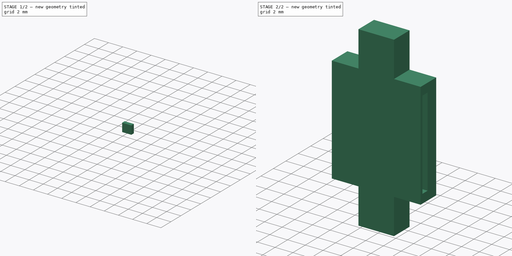
[diagram: build sequence overview — one tinted view per stage of 2, left to right]
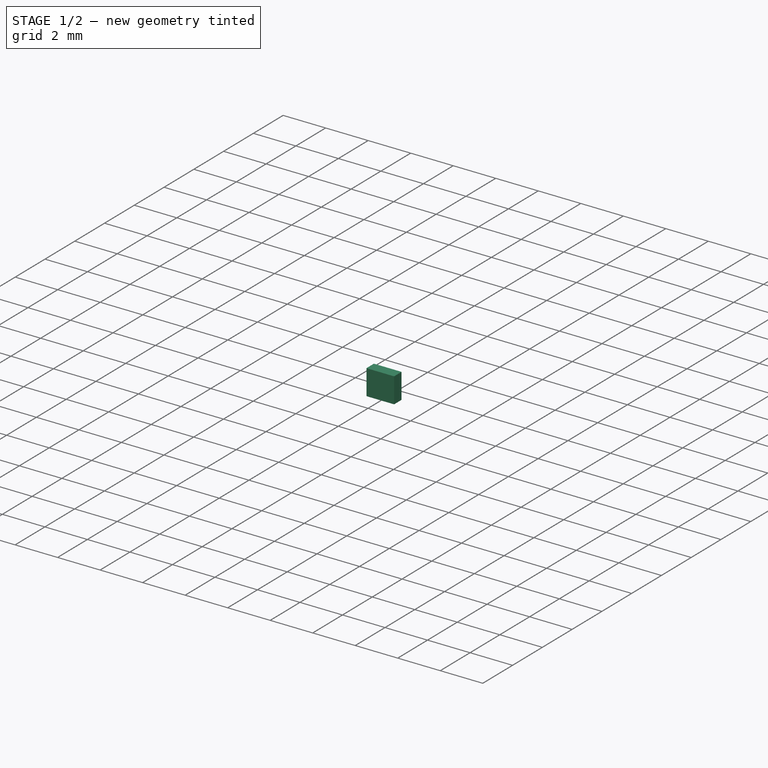
[diagram: stage 1 of 2 — iso view after this stage's code; geometry added in this stage tinted green]
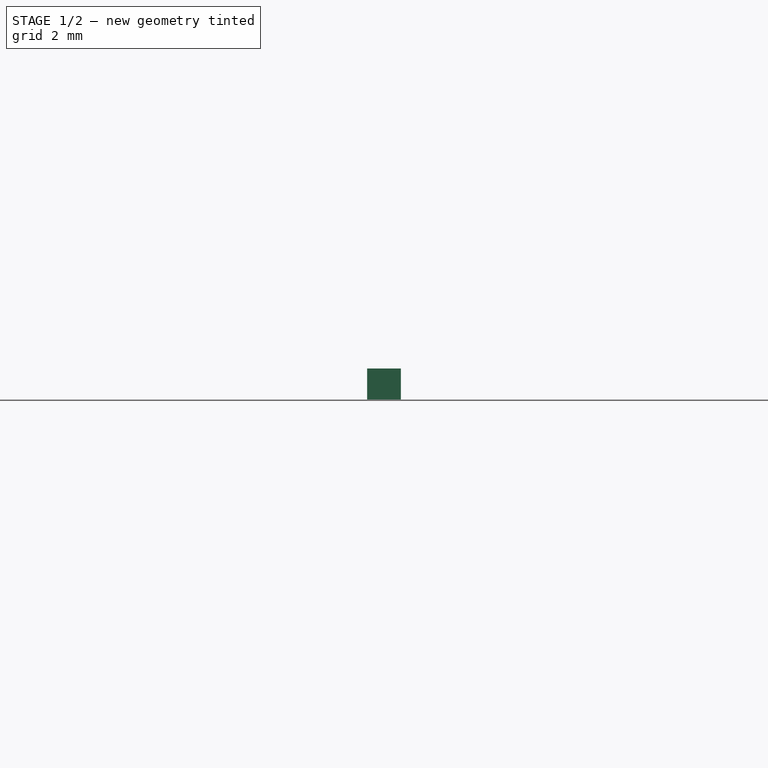
[diagram: stage 1 of 2 — front view after this stage's code; geometry added in this stage tinted green]
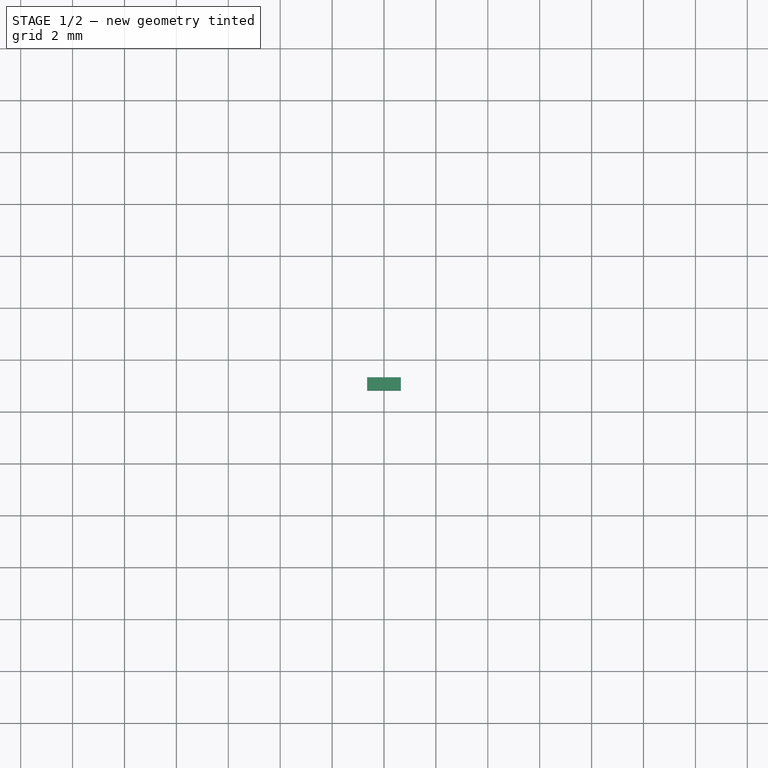
[diagram: stage 1 of 2 — top view after this stage's code; geometry added in this stage tinted green]
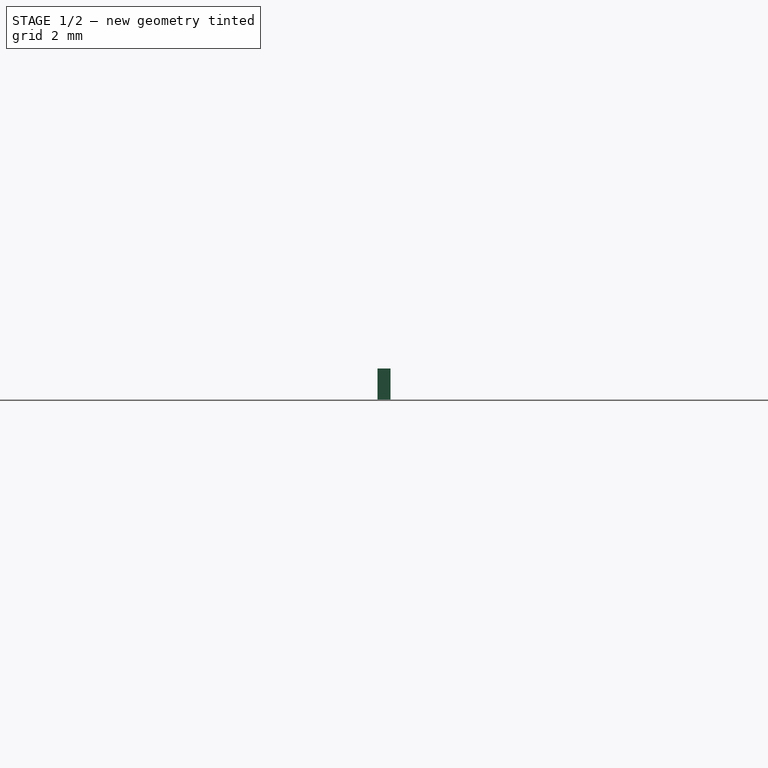
[diagram: stage 1 of 2 — right view after this stage's code; geometry added in this stage tinted green]
FCSTD DOCUMENT  (FreeCAD 0.21R39043 (Git))
Label: monoliticOnLTCC
License: All rights reserved
LicenseURL: https://en.wikipedia.org/wiki/All_rights_reserved
objects: Part::Feature×53, PartDesign::SubShapeBinder×15, App::Part×14, Part::SubShapeBinder×11, PartDesign::Body×8, Sketcher::SketchObject×2, PartDesign::Pad×1, PartDesign::Boolean×1, PartDesign::Extrusion×1
note: 99 computed .brp shape members not serialized (recipe doc carries the construction recipe); baked Part::Feature solids carry a one-line shape summary decoded from their .brp

FEATURE [Part::Feature] Solid  label="solid19"
  InvalidShape = false
  TreeRank = 54
  ValidateShape = false
  shape: bbox 0.45 x 0.3 x 0.45 mm, 4 faces (baked)
FEATURE [Part::Feature] Solid001  label="solid19_1"
  InvalidShape = false
  TreeRank = 55
  ValidateShape = false
  shape: bbox 0.45 x 0.3 x 0.45 mm, 4 faces (baked)
FEATURE [App::Part] Part  label="BC_Contatto_Esterno"
  ClaimAllChildren = false
  ExportMode = 1
  Group = -> [Solid,Solid001]
  Origin = -> Origin
  TreeRank = 57
  _ExportChildren = -> [Solid,Solid001]
  _GroupVersion = 1
FEATURE [Part::Feature] Shell  label="face1"
  InvalidShape = false
  TreeRank = 58
  ValidateShape = false
  shape: bbox 1.5 x 2e-07 x 6.8 mm, 1 faces, 0 solids (baked)
FEATURE [Part::Feature] Shell001  label="face2"
  InvalidShape = false
  TreeRank = 59
  ValidateShape = false
  shape: bbox 0.3 x 2e-07 x 0.65 mm, 1 faces, 0 solids (baked)
FEATURE [Part::Feature] Shell002  label="face3"
  InvalidShape = false
  TreeRank = 60
  ValidateShape = false
  shape: bbox 2 x 2e-07 x 2 mm, 1 faces, 0 solids (baked)
FEATURE [Part::Feature] Shell003  label="face5"
  InvalidShape = false
  TreeRank = 61
  ValidateShape = false
  shape: bbox 1.5 x 2e-07 x 2.8 mm, 1 faces, 0 solids (baked)
FEATURE [Part::Feature] Shell004  label="face6"
  InvalidShape = false
  TreeRank = 62
  ValidateShape = false
  shape: bbox 0.2 x 2e-07 x 1.2 mm, 1 faces, 0 solids (baked)
FEATURE [Part::Feature] Shell005  label="face7"
  InvalidShape = false
  TreeRank = 63
  ValidateShape = false
  shape: bbox 0.3 x 2e-07 x 0.65 mm, 1 faces, 0 solids (baked)
FEATURE [Part::Feature] Shell006  label="face8"
  InvalidShape = false
  TreeRank = 64
  ValidateShape = false
  shape: bbox 1.5 x 2e-07 x 2.8 mm, 1 faces, 0 solids (baked)
FEATURE [Part::Feature] Shell007  label="face9"
  InvalidShape = false
  TreeRank = 65
  ValidateShape = false
  shape: bbox 0.2 x 2e-07 x 1.2 mm, 1 faces, 0 solids (baked)
FEATURE [Part::Feature] Shell008  label="face10"
  InvalidShape = false
  TreeRank = 66
  ValidateShape = false
  shape: bbox 0.9 x 2e-07 x 0.2 mm, 1 faces, 0 solids (baked)
FEATURE [Part::Feature] Shell009  label="face11"
  InvalidShape = false
  TreeRank = 67
  ValidateShape = false
  shape: bbox 0.9 x 2e-07 x 0.2 mm, 1 faces, 0 solids (baked)
FEATURE [Part::Feature] Shell010  label="face12"
  InvalidShape = false
  TreeRank = 68
  ValidateShape = false
  shape: bbox 0.9 x 2e-07 x 0.2 mm, 1 faces, 0 solids (baked)
FEATURE [Part::Feature] Shell011  label="face13"
  InvalidShape = false
  TreeRank = 69
  ValidateShape = false
  shape: bbox 0.9 x 2e-07 x 0.2 mm, 1 faces, 0 solids (baked)
FEATURE [App::Part] Part001  label="BC_Metal_planar"
  ClaimAllChildren = false
  ExportMode = 1
  Group = -> [Shell,Shell001,Shell002,Shell003,Shell004,Shell005,Shell006,Shell007,Shell008,Shell009,Shell010,Shell011]
  Origin = -> Origin001
  TreeRank = 71
  _ExportChildren = -> [Shell,Shell001,Shell002,Shell003,Shell004,Shell005,Shell006,Shell007,Shell008,Shell009,Shell010,Shell011]
  _GroupVersion = 1
FEATURE [Part::Feature] Solid002  label="solid13"
  InvalidShape = false
  TreeRank = 72
  ValidateShape = false
  shape: bbox 0.13 x 0.411 x 0.13 mm, 4 faces (baked)
FEATURE [Part::Feature] Solid003  label="solid16"
  InvalidShape = false
  TreeRank = 73
  ValidateShape = false
  shape: bbox 0.13 x 0.411 x 0.13 mm, 4 faces (baked)
FEATURE [Part::Feature] Solid004  label="solid32"
  InvalidShape = false
  TreeRank = 74
  ValidateShape = false
  shape: bbox 0.45 x 0.3 x 0.45 mm, 4 faces (baked)
FEATURE [Part::Feature] Solid005  label="solid34"
  InvalidShape = false
  TreeRank = 75
  ValidateShape = false
  shape: bbox 0.3 x 0.125 x 0.3 mm, 4 faces (baked)
FEATURE [App::Part] Part002  label="BC_Metallizzazioni"
  ClaimAllChildren = false
  ExportMode = 1
  Group = -> [Solid002,Solid003,Solid004,Solid005]
  Origin = -> Origin002
  TreeRank = 77
  _ExportChildren = -> [Solid002,Solid003,Solid004,Solid005]
  _GroupVersion = 1
FEATURE [Part::Feature] Solid006  label="solid035"
  InvalidShape = false
  TreeRank = 78
  ValidateShape = false
  shape: bbox 0.13 x 0.411 x 0.13 mm, 4 faces (baked)
FEATURE [Part::Feature] Solid007  label="solid036"
  InvalidShape = false
  TreeRank = 79
  ValidateShape = false
  shape: bbox 0.13 x 0.411 x 0.13 mm, 4 faces (baked)
FEATURE [Part::Feature] Solid008  label="solid037"
  InvalidShape = false
  TreeRank = 80
  ValidateShape = false
  shape: bbox 0.45 x 0.3 x 0.45 mm, 4 faces (baked)
FEATURE [Part::Feature] Solid009  label="solid038"
  InvalidShape = false
  TreeRank = 81
  ValidateShape = false
  shape: bbox 0.3 x 0.125 x 0.3 mm, 4 faces (baked)
FEATURE [App::Part] Part003  label="BC_Metallizzazioni_Bis"
  ClaimAllChildren = false
  ExportMode = 1
  Group = -> [Solid006,Solid007,Solid008,Solid009]
  Origin = -> Origin003
  TreeRank = 83
  _ExportChildren = -> [Solid006,Solid007,Solid008,Solid009]
  _GroupVersion = 1
FEATURE [Part::Feature] Shell012  label="face14"
  InvalidShape = false
  TreeRank = 84
  ValidateShape = false
  shape: bbox 0.55 x 2e-07 x 7.675 mm, 1 faces, 0 solids (baked)
FEATURE [Part::Feature] Shell013  label="face15"
  InvalidShape = false
  TreeRank = 85
  ValidateShape = false
  shape: bbox 0.55 x 2e-07 x 7.675 mm, 1 faces, 0 solids (baked)
FEATURE [App::Part] Part004  label="BC_Metallizzazioni_Megtron"
  ClaimAllChildren = false
  ExportMode = 1
  Group = -> [Shell012,Shell013]
  Origin = -> Origin004
  TreeRank = 87
  _ExportChildren = -> [Shell012,Shell013]
  _GroupVersion = 1
FEATURE [Part::Feature] Shell014  label="face4"
  InvalidShape = false
  TreeRank = 88
  ValidateShape = false
  shape: bbox 0.14 x 2e-07 x 1.59 mm, 1 faces, 0 solids (baked)
FEATURE [App::Part] Part005  label="BC_Monolitico_metal"
  ClaimAllChildren = false
  ExportMode = 1
  Group = -> [Shell014]
  Origin = -> Origin005
  TreeRank = 90
  _ExportChildren = -> [Shell014]
  _GroupVersion = 1
FEATURE [Part::Feature] Solid010  label="solid23"
  InvalidShape = false
  TreeRank = 91
  ValidateShape = false
  shape: bbox 0.13 x 0.274 x 0.13 mm, 4 faces (baked)
FEATURE [Part::Feature] Solid011  label="solid24"
  InvalidShape = false
  TreeRank = 92
  ValidateShape = false
  shape: bbox 0.13 x 0.274 x 0.13 mm, 4 faces (baked)
FEATURE [Part::Feature] Solid012  label="solid25"
  InvalidShape = false
  TreeRank = 93
  ValidateShape = false
  shape: bbox 0.13 x 0.274 x 0.13 mm, 4 faces (baked)
FEATURE [Part::Feature] Compound  label="solid27"
  InvalidShape = false
  TreeRank = 94
  ValidateShape = false
  shape: bbox 0.65 x 0.274 x 0.13 mm, 8 faces, 2 solids (baked)
FEATURE [Part::Feature] Solid013  label="solid29"
  InvalidShape = false
  TreeRank = 95
  ValidateShape = false
  shape: bbox 0.13 x 0.274 x 0.13 mm, 4 faces (baked)
FEATURE [Part::Feature] Solid014  label="solid31"
  InvalidShape = false
  TreeRank = 96
  ValidateShape = false
  shape: bbox 0.13 x 0.137 x 0.13 mm, 4 faces (baked)
FEATURE [Part::Feature] Solid015  label="solid35"
  InvalidShape = false
  TreeRank = 97
  ValidateShape = false
  shape: bbox 0.13 x 0.137 x 0.13 mm, 4 faces (baked)
FEATURE [Part::Feature] Solid016  label="solid36"
  InvalidShape = false
  TreeRank = 98
  ValidateShape = false
  shape: bbox 0.13 x 0.137 x 0.13 mm, 4 faces (baked)
FEATURE [Part::Feature] Solid017  label="solid35_1"
  InvalidShape = false
  TreeRank = 99
  ValidateShape = false
  shape: bbox 0.13 x 0.137 x 0.13 mm, 4 faces (baked)
FEATURE [Part::Feature] Solid018  label="solid36_1"
  InvalidShape = false
  TreeRank = 100
  ValidateShape = false
  shape: bbox 0.13 x 0.137 x 0.13 mm, 4 faces (baked)
FEATURE [Part::Feature] Solid019  label="solid38"
  InvalidShape = false
  TreeRank = 101
  ValidateShape = false
  shape: bbox 0.13 x 0.137 x 0.13 mm, 4 faces (baked)
FEATURE [Part::Feature] Solid020  label="solid38_1"
  InvalidShape = false
  TreeRank = 102
  ValidateShape = false
  shape: bbox 0.13 x 0.137 x 0.13 mm, 4 faces (baked)
FEATURE [App::Part] Part006  label="BC_Via_Hole"
  ClaimAllChildren = false
  ExportMode = 1
  Group = -> [Solid010,Solid011,Solid012,Compound,Solid013,Solid014,Solid015,Solid016,Solid017,Solid018,Solid019,Solid020]
  Origin = -> Origin006
  TreeRank = 104
  _ExportChildren = -> [Solid010,Solid011,Solid012,Compound,Solid013,Solid014,Solid015,Solid016,Solid017,Solid018,Solid019,Solid020]
  _GroupVersion = 1
FEATURE [Part::Feature] Solid021  label="solid039"
  InvalidShape = false
  TreeRank = 105
  ValidateShape = false
  shape: bbox 0.13 x 0.274 x 0.13 mm, 4 faces (baked)
FEATURE [Part::Feature] Solid022  label="solid040"
  InvalidShape = false
  TreeRank = 106
  ValidateShape = false
  shape: bbox 0.13 x 0.274 x 0.13 mm, 4 faces (baked)
FEATURE [Part::Feature] Solid023  label="solid041"
  InvalidShape = false
  TreeRank = 137
  ValidateShape = false
  shape: bbox 0.13 x 0.274 x 0.13 mm, 4 faces (baked)
FEATURE [Part::Feature] Solid024  label="solid042"
  InvalidShape = false
  TreeRank = 138
  ValidateShape = false
  shape: bbox 0.13 x 0.274 x 0.13 mm, 4 faces (baked)
FEATURE [Part::Feature] Solid025  label="solid28"
  InvalidShape = false
  TreeRank = 139
  ValidateShape = false
  shape: bbox 0.13 x 0.274 x 0.13 mm, 4 faces (baked)
FEATURE [Part::Feature] Solid026  label="solid043"
  InvalidShape = false
  TreeRank = 140
  ValidateShape = false
  shape: bbox 0.13 x 0.274 x 0.13 mm, 4 faces (baked)
FEATURE [Part::Feature] Solid027  label="solid044"
  InvalidShape = false
  TreeRank = 141
  ValidateShape = false
  shape: bbox 0.13 x 0.137 x 0.13 mm, 4 faces (baked)
FEATURE [App::Part] Part007  label="BC_Via_Hole_Bis"
  ClaimAllChildren = false
  ExportMode = 1
  Group = -> [Solid021,Solid022,Solid023,Solid024,Solid025,Solid026,Solid027]
  Origin = -> Origin007
  TreeRank = 143
  _ExportChildren = -> [Solid021,Solid022,Solid023,Solid024,Solid025,Solid026,Solid027]
  _GroupVersion = 1
FEATURE [Part::Feature] Solid028  label="wire1"
  InvalidShape = false
  TreeRank = 144
  ValidateShape = false
  shape: bbox 0.0253 x 0.2185 x 0.45 mm, 6 faces (baked)
FEATURE [Part::Feature] Solid029  label="wire2"
  InvalidShape = false
  TreeRank = 145
  ValidateShape = false
  shape: bbox 0.0253 x 0.2185 x 0.45 mm, 6 faces (baked)
FEATURE [App::Part] Part008  label="BC_wires"
  ClaimAllChildren = false
  ExportMode = 1
  Group = -> [Solid028,Solid029]
  Origin = -> Origin008
  TreeRank = 147
  _ExportChildren = -> [Solid028,Solid029]
  _GroupVersion = 1
FEATURE [Part::Feature] Solid030  label="solid39"
  InvalidShape = false
  TreeRank = 148
  ValidateShape = false
  shape: bbox 10 x 2.5 x 20 mm, 14 faces (baked)
FEATURE [App::Part] Part009  label="AIR"
  ClaimAllChildren = false
  ExportMode = 1
  Group = -> [Solid030]
  Origin = -> Origin009
  TreeRank = 150
  _ExportChildren = -> [Solid030]
  _GroupVersion = 1
FEATURE [Part::Feature] Solid031  label="solid8"
  InvalidShape = false
  TreeRank = 151
  ValidateShape = false
  shape: bbox 10 x 0.125 x 20 mm, 14 faces (baked)
FEATURE [App::Part] Part010  label="DIEL_Megtron6"
  ClaimAllChildren = false
  ExportMode = 1
  Group = -> [Solid031]
  Origin = -> Origin010
  TreeRank = 153
  _ExportChildren = -> [Solid031]
  _GroupVersion = 1
FEATURE [Part::Feature] Solid032  label="solid5"
  InvalidShape = false
  TreeRank = 154
  ValidateShape = false
  shape: bbox 1.7 x 0.1 x 1.7 mm, 6 faces (baked)
FEATURE [App::Part] Part011  label="DIEL_Monolitico_subs"
  ClaimAllChildren = false
  ExportMode = 1
  Group = -> [Solid032]
  Origin = -> Origin011
  TreeRank = 156
  _ExportChildren = -> [Solid032]
  _GroupVersion = 1
FEATURE [Part::Feature] Solid033  label="solid1"
  InvalidShape = false
  TreeRank = 157
  ValidateShape = false
  shape: bbox 10 x 0.137 x 10 mm, 6 faces (baked)
FEATURE [Part::Feature] Solid034  label="solid1_1"
  InvalidShape = false
  TreeRank = 158
  ValidateShape = false
  shape: bbox 10 x 0.274 x 10 mm, 6 faces (baked)
FEATURE [Part::Feature] Solid035  label="solid1_3"
  InvalidShape = false
  TreeRank = 159
  ValidateShape = false
  shape: bbox 10 x 0.274 x 10 mm, 6 faces (baked)
FEATURE [Part::Feature] Solid036  label="solid1_5"
  InvalidShape = false
  TreeRank = 160
  ValidateShape = false
  shape: bbox 10 x 0.137 x 10 mm, 6 faces (baked)
FEATURE [App::Part] Part012  label="DIEL_Substrato"
  ClaimAllChildren = false
  ExportMode = 1
  Group = -> [Solid033,Solid034,Solid035,Solid036]
  Origin = -> Origin012
  TreeRank = 162
  _ExportChildren = -> [Solid033,Solid034,Solid035,Solid036]
  _GroupVersion = 1
FEATURE [PartDesign::SubShapeBinder] Binder  label="Binder(solid39)"
  BindCopyOnChange = 0
  BindMode = 0
  ClaimChildren = false
  Context = -> Part013 [Body.Binder.]
  EdgeTolerance = 1e-06
  FillStyle = 0
  Fuse = false
  Group_EnableExport = true
  InvalidShape = false
  MakeFace = true
  MergeEdges = true
  OffsetFill = false
  OffsetIntersection = false
  OffsetJoinType = 0
  OffsetOpenResult = false
  Outline = false
  PartialLoad = false
  Relative = true
  SplitEdges = false
  Support = -> [Part009[Solid030.Face9]]
  TightBound = false
  TreeRank = 178
  ValidateShape = false
  _Version = 8
FEATURE [PartDesign::SubShapeBinder] Binder001  label="Binder001(solid8)"
  BindCopyOnChange = 0
  BindMode = 0
  ClaimChildren = false
  Context = -> Part013 [Body.Binder001.]
  EdgeTolerance = 1e-06
  FillStyle = 0
  Fuse = false
  Group_EnableExport = true
  InvalidShape = false
  MakeFace = true
  MergeEdges = true
  OffsetFill = false
  OffsetIntersection = false
  OffsetJoinType = 0
  OffsetOpenResult = false
  Outline = false
  PartialLoad = false
  Relative = true
  SplitEdges = false
  Support = -> [Part010[Solid031.Face9]]
  TightBound = false
  TreeRank = 179
  ValidateShape = false
  _Version = 8
FEATURE [PartDesign::Body] Body  label="WGP_1"
  AutoGroupSolids = false
  ClaimAllChildren = false
  ExportMode = 2
  Group = -> [Binder,Binder001]
  InvalidShape = false
  Origin = -> Origin014
  TreeRank = 177
  ValidateShape = false
  _ExportChildren = -> [Binder,Binder001]
  _GroupVersion = 1
FEATURE [PartDesign::SubShapeBinder] Binder002  label="Binder002(solid39)"
  BindCopyOnChange = 0
  BindMode = 0
  ClaimChildren = false
  Context = -> Part013 [Body001.Binder002.]
  EdgeTolerance = 1e-06
  FillStyle = 0
  Fuse = false
  Group_EnableExport = true
  InvalidShape = false
  MakeFace = true
  MergeEdges = true
  OffsetFill = false
  OffsetIntersection = false
  OffsetJoinType = 0
  OffsetOpenResult = false
  Outline = false
  PartialLoad = false
  Relative = true
  SplitEdges = false
  Support = -> [Part009[Solid030.Face13]]
  TightBound = false
  TreeRank = 190
  ValidateShape = false
  _Version = 8
FEATURE [PartDesign::SubShapeBinder] Binder003  label="Binder003(solid8)"
  BindCopyOnChange = 0
  BindMode = 0
  ClaimChildren = false
  Context = -> Part013 [Body001.Binder003.]
  EdgeTolerance = 1e-06
  FillStyle = 0
  Fuse = false
  Group_EnableExport = true
  InvalidShape = false
  MakeFace = true
  MergeEdges = true
  OffsetFill = false
  OffsetIntersection = false
  OffsetJoinType = 0
  OffsetOpenResult = false
  Outline = false
  PartialLoad = false
  Relative = true
  SplitEdges = false
  Support = -> [Part010[Solid031.Face13]]
  TightBound = false
  TreeRank = 191
  ValidateShape = false
  _Version = 8
FEATURE [PartDesign::Body] Body001  label="WGP_2"
  AutoGroupSolids = false
  ClaimAllChildren = false
  ExportMode = 2
  Group = -> [Binder002,Binder003]
  InvalidShape = false
  Origin = -> Origin015
  TreeRank = 189
  ValidateShape = false
  _ExportChildren = -> [Binder002,Binder003]
  _GroupVersion = 1
FEATURE [Part::SubShapeBinder] Import  label="Import(solid8)"
  BindCopyOnChange = 0
  BindMode = 0
  ClaimChildren = false
  Context = -> Part013 [Body002.Import.]
  EdgeTolerance = 1e-06
  FillStyle = 0
  Fuse = false
  Group_EnableExport = false
  InvalidShape = false
  MakeFace = false
  MergeEdges = true
  OffsetFill = false
  OffsetIntersection = false
  OffsetJoinType = 0
  OffsetOpenResult = false
  Outline = false
  PartialLoad = false
  Relative = true
  SplitEdges = false
  Support = -> [Part010[Solid031.]]
  TightBound = false
  TreeRank = 202
  ValidateShape = false
  _Version = 8
FEATURE [Part::SubShapeBinder] Import001  label="Import001(face5)"
  BindCopyOnChange = 0
  BindMode = 0
  ClaimChildren = false
  Context = -> Part013 [Body002.Import001.]
  EdgeTolerance = 1e-06
  FillStyle = 0
  Fuse = false
  Group_EnableExport = false
  InvalidShape = false
  MakeFace = false
  MergeEdges = true
  OffsetFill = false
  OffsetIntersection = false
  OffsetJoinType = 0
  OffsetOpenResult = false
  Outline = false
  PartialLoad = false
  Relative = true
  SplitEdges = false
  Support = -> [Part001[Shell003.]]
  TightBound = false
  TreeRank = 204
  ValidateShape = false
  _Version = 8
FEATURE [Part::SubShapeBinder] Import002  label="Import002(solid32)"
  BindCopyOnChange = 0
  BindMode = 0
  ClaimChildren = false
  Context = -> Part013 [Body002.Import002.]
  EdgeTolerance = 1e-06
  FillStyle = 0
  Fuse = false
  Group_EnableExport = false
  InvalidShape = false
  MakeFace = false
  MergeEdges = true
  OffsetFill = false
  OffsetIntersection = false
  OffsetJoinType = 0
  OffsetOpenResult = false
  Outline = false
  PartialLoad = false
  Relative = true
  SplitEdges = false
  Support = -> [Part002[Solid004.]]
  TightBound = false
  TreeRank = 205
  ValidateShape = false
  _Version = 8
FEATURE [Part::SubShapeBinder] Import003  label="Import003(face8)"
  BindCopyOnChange = 0
  BindMode = 0
  ClaimChildren = false
  Context = -> Part013 [Body002.Import003.]
  EdgeTolerance = 1e-06
  FillStyle = 0
  Fuse = false
  Group_EnableExport = false
  InvalidShape = false
  MakeFace = false
  MergeEdges = true
  OffsetFill = false
  OffsetIntersection = false
  OffsetJoinType = 0
  OffsetOpenResult = false
  Outline = false
  PartialLoad = false
  Relative = true
  SplitEdges = false
  Support = -> [Part001[Shell006.]]
  TightBound = false
  TreeRank = 206
  ValidateShape = false
  _Version = 8
FEATURE [Part::SubShapeBinder] Import004  label="Import004(solid037)"
  BindCopyOnChange = 0
  BindMode = 0
  ClaimChildren = false
  Context = -> Part013 [Body002.Import004.]
  EdgeTolerance = 1e-06
  FillStyle = 0
  Fuse = false
  Group_EnableExport = false
  InvalidShape = false
  MakeFace = false
  MergeEdges = true
  OffsetFill = false
  OffsetIntersection = false
  OffsetJoinType = 0
  OffsetOpenResult = false
  Outline = false
  PartialLoad = false
  Relative = true
  SplitEdges = false
  Support = -> [Part003[Solid008.]]
  TightBound = false
  TreeRank = 207
  ValidateShape = false
  _Version = 8
FEATURE [Part::SubShapeBinder] Import005  label="Import005(face3)"
  BindCopyOnChange = 0
  BindMode = 0
  ClaimChildren = false
  Context = -> Part013 [Body003.Import005.]
  EdgeTolerance = 1e-06
  FillStyle = 0
  Fuse = false
  InvalidShape = false
  MakeFace = false
  MergeEdges = true
  OffsetFill = false
  OffsetIntersection = false
  OffsetJoinType = 0
  OffsetOpenResult = false
  Outline = false
  PartialLoad = false
  Relative = true
  SplitEdges = false
  Support = -> [Part001[Shell002.]]
  TightBound = false
  TreeRank = 219
  ValidateShape = false
  _Version = 8
FEATURE [Part::SubShapeBinder] Import006  label="Import006(face4)"
  BindCopyOnChange = 0
  BindMode = 0
  ClaimChildren = false
  Context = -> Part013 [Body003.Import006.]
  EdgeTolerance = 1e-06
  FillStyle = 0
  Fuse = false
  InvalidShape = false
  MakeFace = false
  MergeEdges = true
  OffsetFill = false
  OffsetIntersection = false
  OffsetJoinType = 0
  OffsetOpenResult = false
  Outline = false
  PartialLoad = false
  Relative = true
  SplitEdges = false
  Support = -> [Part005[Shell014.]]
  TightBound = false
  TreeRank = 221
  ValidateShape = false
  _Version = 8
FEATURE [Part::SubShapeBinder] Import007  label="Import007(solid5)"
  BindCopyOnChange = 0
  BindMode = 0
  ClaimChildren = false
  Context = -> Part013 [Body003.Import007.]
  EdgeTolerance = 1e-06
  FillStyle = 0
  Fuse = false
  InvalidShape = false
  MakeFace = false
  MergeEdges = true
  OffsetFill = false
  OffsetIntersection = false
  OffsetJoinType = 0
  OffsetOpenResult = false
  Outline = false
  PartialLoad = false
  Relative = true
  SplitEdges = false
  Support = -> [Part011[Solid032.]]
  TightBound = false
  TreeRank = 222
  ValidateShape = false
  _Version = 8
FEATURE [Sketcher::SketchObject] Sketch001
  ArcFitTolerance = 1e-06
  AttachmentSupport = -> [Import005]
  ExternalBSplineMaxDegree = 5
  ExternalBSplineTolerance = 0.0001
  ExternalGeometry = -> [Import006,Import007]
  FullyConstrained = true
  InternalTolerance = 1e-06
  InvalidShape = false
  MakeInternals = false
  MapMode = 5
  Placement = pos=(0,0.822,0) rot=(1,0,0;1.5708rad)
  Support = -> [Import005]
  TreeRank = 220
  ValidateShape = false
  sketch-geometry (4):
    g0: LineSegment StartX=0.65 StartY=0.595 StartZ=0 EndX=-0.65 EndY=0.595 EndZ=0
    g1: LineSegment StartX=-0.65 StartY=0.595 StartZ=0 EndX=-0.65 EndY=-0.595 EndZ=0
    g2: LineSegment StartX=-0.65 StartY=-0.595 StartZ=0 EndX=0.65 EndY=-0.595 EndZ=0
    g3: LineSegment StartX=0.65 StartY=-0.595 StartZ=0 EndX=0.65 EndY=0.595 EndZ=0
  constraints (10):
    c: Coincident(g0,g1)
    c: Coincident(g1,g2)
    c: Coincident(g2,g3)
    c: Coincident(g3,g0)
    c: Horizontal(g2)
    c: Vertical(g1)
    c: Symmetric(g0,g0,g-2)
    c: Symmetric(g0,g2,g-1)
    c: DistanceY(g0,g-4) = 0.1
    c: DistanceX(g-7,g0) = 0.2
FEATURE [PartDesign::Pad] Pad
  AddSubType = 0
  AlongSketchNormal = false
  AutoTaperInnerAngle = true
  CheckUpToFaceLimits = true
  ClaimChildren = false
  Direction = (0,-1,2e-16)
  Fit = 0
  FitJoin = 0
  InnerFit = 0
  InnerFitJoin = 0
  InvalidShape = false
  Length = 0.5
  Length2 = 10
  Linearize = true
  NewSolid = false
  Profile = -> Sketch001
  ReferenceAxis = -> Sketch001 [N_Axis]
  Reversed = true
  Suppress = false
  TaperInnerAngle = 0
  TaperInnerAngleRev = 0
  TreeRank = 223
  Type = 0
  ValidateShape = true
  _ProfileBasedVersion = 1
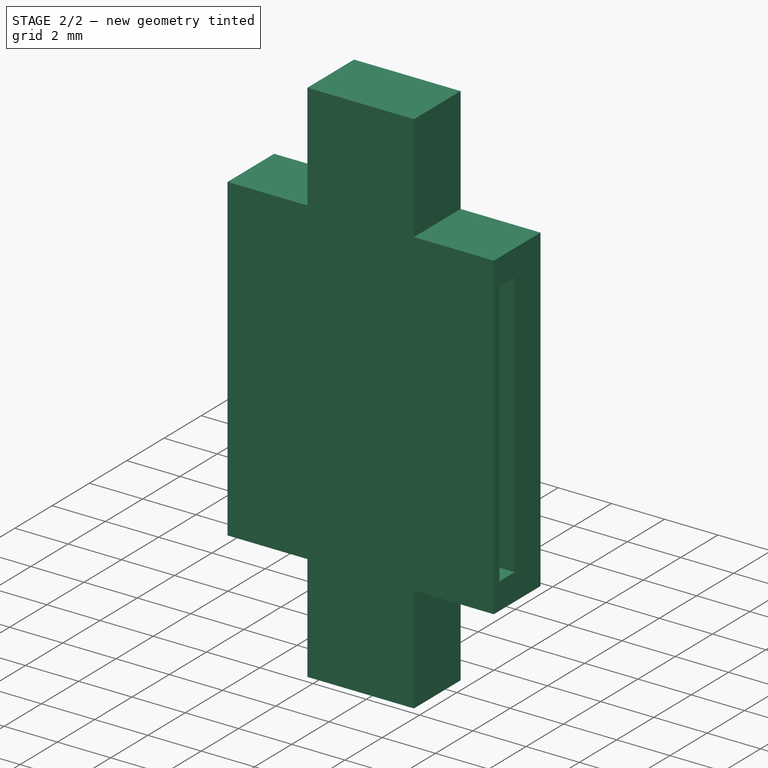
[diagram: stage 2 of 2 — iso view after this stage's code; geometry added in this stage tinted green]
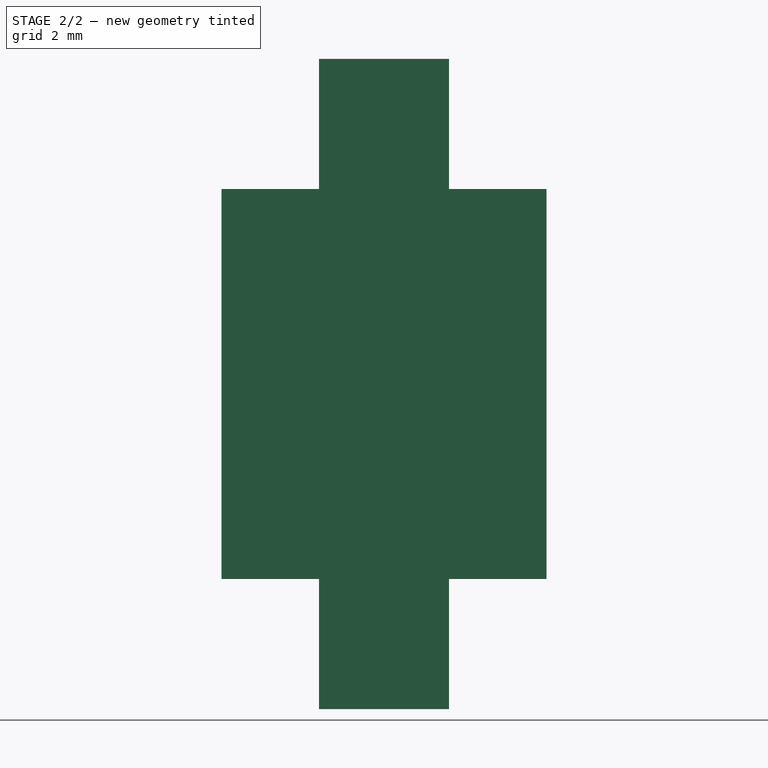
[diagram: stage 2 of 2 — front view after this stage's code; geometry added in this stage tinted green]
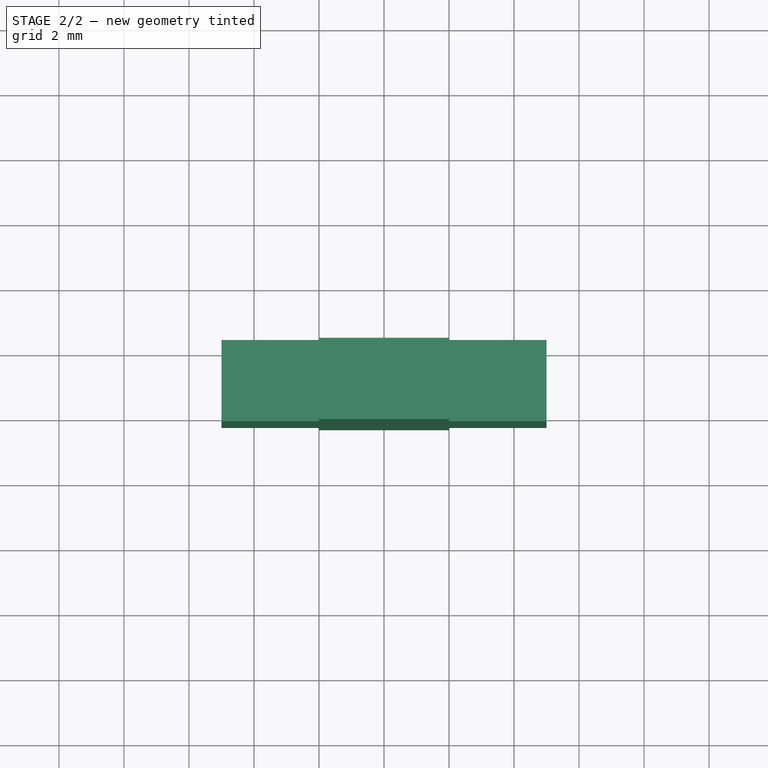
[diagram: stage 2 of 2 — top view after this stage's code; geometry added in this stage tinted green]
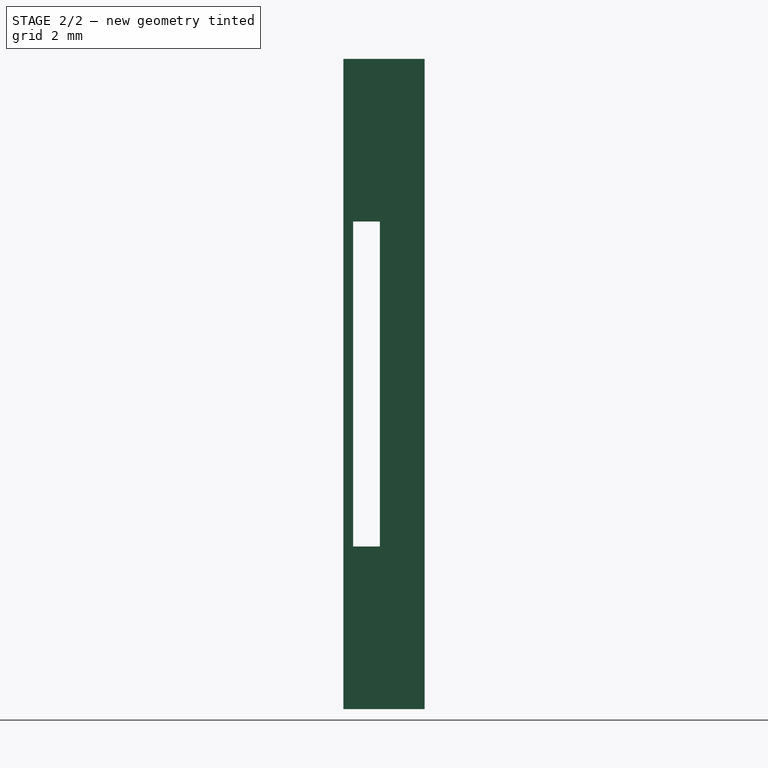
[diagram: stage 2 of 2 — right view after this stage's code; geometry added in this stage tinted green]
FEATURE [PartDesign::Body] Body003  label="box"
  AutoGroupSolids = false
  ClaimAllChildren = false
  ExportMode = 0
  Group = -> [Import005,Sketch001,Import006,Import007,Pad]
  InvalidShape = false
  Origin = -> Origin017
  Tip = -> Pad
  TreeRank = 218
  ValidateShape = false
  _ExportChildren = -> [Import005,Import006,Import007,Pad]
  _GroupVersion = 1
FEATURE [PartDesign::SubShapeBinder] Binder004  label="Binder004(Pad)"
  BindCopyOnChange = 0
  BindMode = 0
  ClaimChildren = false
  Context = -> Part013 [Body004.Binder004.]
  EdgeTolerance = 1e-06
  FillStyle = 0
  Fuse = false
  Group_EnableExport = true
  InvalidShape = false
  MakeFace = true
  MergeEdges = true
  OffsetFill = false
  OffsetIntersection = false
  OffsetJoinType = 0
  OffsetOpenResult = false
  Outline = false
  PartialLoad = false
  Relative = true
  SplitEdges = false
  Support = -> [Body003[Pad.Face3]]
  TightBound = false
  TreeRank = 234
  ValidateShape = false
  _Version = 8
FEATURE [PartDesign::Body] Body004  label="SPLIT_1"
  AutoGroupSolids = false
  ClaimAllChildren = false
  ExportMode = 2
  Group = -> [Binder004]
  InvalidShape = false
  Origin = -> Origin018
  TreeRank = 233
  ValidateShape = false
  _ExportChildren = -> [Binder004]
  _GroupVersion = 1
FEATURE [PartDesign::SubShapeBinder] Binder005  label="Binder005(Pad)"
  BindCopyOnChange = 0
  BindMode = 0
  ClaimChildren = false
  Context = -> Part013 [Body005.Binder005.]
  EdgeTolerance = 1e-06
  FillStyle = 0
  Fuse = false
  Group_EnableExport = true
  InvalidShape = false
  MakeFace = true
  MergeEdges = true
  OffsetFill = false
  OffsetIntersection = false
  OffsetJoinType = 0
  OffsetOpenResult = false
  Outline = false
  PartialLoad = false
  Relative = true
  SplitEdges = false
  Support = -> [Body003[Pad.Face1]]
  TightBound = false
  TreeRank = 245
  ValidateShape = false
  _Version = 8
FEATURE [PartDesign::Body] Body005  label="SPLIT_2"
  AutoGroupSolids = false
  ClaimAllChildren = false
  ExportMode = 2
  Group = -> [Binder005]
  InvalidShape = false
  Origin = -> Origin019
  TreeRank = 244
  ValidateShape = false
  _ExportChildren = -> [Binder005]
  _GroupVersion = 1
FEATURE [PartDesign::SubShapeBinder] Binder006  label="Binder006(Pad)"
  BindCopyOnChange = 0
  BindMode = 0
  ClaimChildren = false
  Context = -> Part013 [Body006.Binder006.]
  EdgeTolerance = 1e-06
  FillStyle = 0
  Fuse = false
  Group_EnableExport = true
  InvalidShape = false
  MakeFace = true
  MergeEdges = true
  OffsetFill = false
  OffsetIntersection = false
  OffsetJoinType = 0
  OffsetOpenResult = false
  Outline = false
  PartialLoad = false
  Relative = true
  SplitEdges = false
  Support = -> [Body003[Pad.Face4]]
  TightBound = false
  TreeRank = 256
  ValidateShape = false
  _Version = 8
FEATURE [PartDesign::SubShapeBinder] Binder007  label="Binder007(Pad)"
  BindCopyOnChange = 0
  BindMode = 0
  ClaimChildren = false
  Context = -> Part013 [Body006.Binder007.]
  EdgeTolerance = 1e-06
  FillStyle = 0
  Fuse = false
  Group_EnableExport = true
  InvalidShape = false
  MakeFace = true
  MergeEdges = true
  OffsetFill = false
  OffsetIntersection = false
  OffsetJoinType = 0
  OffsetOpenResult = false
  Outline = false
  PartialLoad = false
  Relative = true
  SplitEdges = false
  Support = -> [Body003[Pad.Face2]]
  TightBound = false
  TreeRank = 257
  ValidateShape = false
  _Version = 8
FEATURE [PartDesign::SubShapeBinder] Reference  label="Reference(solid39)"
  BindCopyOnChange = 0
  BindMode = 0
  ClaimChildren = false
  Context = -> Part013 [Body007.Boolean.Reference.]
  EdgeTolerance = 1e-06
  FillStyle = 0
  Fuse = true
  InvalidShape = false
  MakeFace = true
  MergeEdges = true
  OffsetFill = false
  OffsetIntersection = false
  OffsetJoinType = 0
  OffsetOpenResult = false
  Outline = false
  PartialLoad = false
  Relative = true
  SplitEdges = false
  Support = -> [Part009[Solid030.]]
  TightBound = false
  TreeRank = 269
  ValidateShape = false
  _Version = 8
FEATURE [PartDesign::SubShapeBinder] Reference001  label="Reference001(solid5)"
  BindCopyOnChange = 0
  BindMode = 0
  ClaimChildren = false
  Context = -> Part013 [Body007.Boolean.Reference001.]
  EdgeTolerance = 1e-06
  FillStyle = 0
  Fuse = true
  InvalidShape = false
  MakeFace = true
  MergeEdges = true
  OffsetFill = false
  OffsetIntersection = false
  OffsetJoinType = 0
  OffsetOpenResult = false
  Outline = false
  PartialLoad = false
  Relative = true
  SplitEdges = false
  Support = -> [Part011[Solid032.]]
  TightBound = false
  TreeRank = 270
  ValidateShape = false
  _Version = 8
FEATURE [PartDesign::SubShapeBinder] Reference002  label="Reference002(solid1_1)"
  BindCopyOnChange = 0
  BindMode = 0
  ClaimChildren = false
  Context = -> Part013 [Body007.Boolean.Reference002.]
  EdgeTolerance = 1e-06
  FillStyle = 0
  Fuse = true
  InvalidShape = false
  MakeFace = true
  MergeEdges = true
  OffsetFill = false
  OffsetIntersection = false
  OffsetJoinType = 0
  OffsetOpenResult = false
  Outline = false
  PartialLoad = false
  Relative = true
  SplitEdges = false
  Support = -> [Part012[Solid034.]]
  TightBound = false
  TreeRank = 271
  ValidateShape = false
  _Version = 8
FEATURE [PartDesign::SubShapeBinder] Reference003  label="Reference003(solid1_3)"
  BindCopyOnChange = 0
  BindMode = 0
  ClaimChildren = false
  Context = -> Part013 [Body007.Boolean.Reference003.]
  EdgeTolerance = 1e-06
  FillStyle = 0
  Fuse = true
  InvalidShape = false
  MakeFace = true
  MergeEdges = true
  OffsetFill = false
  OffsetIntersection = false
  OffsetJoinType = 0
  OffsetOpenResult = false
  Outline = false
  PartialLoad = false
  Relative = true
  SplitEdges = false
  Support = -> [Part012[Solid035.]]
  TightBound = false
  TreeRank = 272
  ValidateShape = false
  _Version = 8
FEATURE [PartDesign::SubShapeBinder] Reference004  label="Reference004(solid1_5)"
  BindCopyOnChange = 0
  BindMode = 0
  ClaimChildren = false
  Context = -> Part013 [Body007.Boolean.Reference004.]
  EdgeTolerance = 1e-06
  FillStyle = 0
  Fuse = true
  InvalidShape = false
  MakeFace = true
  MergeEdges = true
  OffsetFill = false
  OffsetIntersection = false
  OffsetJoinType = 0
  OffsetOpenResult = false
  Outline = false
  PartialLoad = false
  Relative = true
  SplitEdges = false
  Support = -> [Part012[Solid036.]]
  TightBound = false
  TreeRank = 273
  ValidateShape = false
  _Version = 8
FEATURE [PartDesign::SubShapeBinder] Reference005  label="Reference005(solid1)"
  BindCopyOnChange = 0
  BindMode = 0
  ClaimChildren = false
  Context = -> Part013 [Body007.Boolean.Reference005.]
  EdgeTolerance = 1e-06
  FillStyle = 0
  Fuse = true
  InvalidShape = false
  MakeFace = true
  MergeEdges = true
  OffsetFill = false
  OffsetIntersection = false
  OffsetJoinType = 0
  OffsetOpenResult = false
  Outline = false
  PartialLoad = false
  Relative = true
  SplitEdges = false
  Support = -> [Part012[Solid033.]]
  TightBound = false
  TreeRank = 274
  ValidateShape = false
  _Version = 8
FEATURE [PartDesign::Boolean] Boolean
  ClaimAllChildren = false
  ExportMode = 0
  Group = -> [Reference,Reference001,Reference002,Reference003,Reference004,Reference005]
  InvalidShape = false
  NewSolid = true
  Suppress = false
  TreeRank = 268
  Type = 1
  ValidateShape = true
  _ExportChildren = -> [Reference,Reference001,Reference002,Reference003,Reference004,Reference005]
  _GroupVersion = 1
FEATURE [PartDesign::Body] Body007  label="DIEL_AIR"
  AutoGroupSolids = false
  ClaimAllChildren = false
  ExportMode = 0
  Group = -> [Boolean]
  InvalidShape = false
  Origin = -> Origin021
  Tip = -> Boolean
  TreeRank = 267
  ValidateShape = false
  _ExportChildren = -> [Boolean]
  _GroupVersion = 1
FEATURE [Part::SubShapeBinder] Import008  label="Import008(Boolean)"
  BindCopyOnChange = 0
  BindMode = 0
  ClaimChildren = false
  Context = -> Part013 [Body002.Import008.]
  EdgeTolerance = 1e-06
  FillStyle = 0
  Fuse = false
  Group_EnableExport = false
  InvalidShape = false
  MakeFace = false
  MergeEdges = true
  OffsetFill = false
  OffsetIntersection = false
  OffsetJoinType = 0
  OffsetOpenResult = false
  Outline = false
  PartialLoad = false
  Relative = true
  SplitEdges = false
  Support = -> [Body007[Boolean.]]
  TightBound = false
  TreeRank = 275
  ValidateShape = false
  _Version = 8
FEATURE [Part::SubShapeBinder] Import009  label="Import009(face1)"
  BindCopyOnChange = 0
  BindMode = 0
  ClaimChildren = false
  Context = -> Part013 [Body002.Import009.]
  EdgeTolerance = 1e-06
  FillStyle = 0
  Fuse = false
  Group_EnableExport = false
  InvalidShape = false
  MakeFace = false
  MergeEdges = true
  OffsetFill = false
  OffsetIntersection = false
  OffsetJoinType = 0
  OffsetOpenResult = false
  Outline = false
  PartialLoad = false
  Relative = true
  SplitEdges = false
  Support = -> [Part001[Shell.]]
  TightBound = false
  TreeRank = 276
  ValidateShape = false
  _Version = 8
FEATURE [Part::SubShapeBinder] Import010  label="Import010(solid1_5)"
  BindCopyOnChange = 0
  BindMode = 0
  ClaimChildren = false
  Context = -> Part013 [Body002.Import010.]
  EdgeTolerance = 1e-06
  FillStyle = 0
  Fuse = false
  Group_EnableExport = false
  InvalidShape = false
  MakeFace = false
  MergeEdges = true
  OffsetFill = false
  OffsetIntersection = false
  OffsetJoinType = 0
  OffsetOpenResult = false
  Outline = false
  PartialLoad = false
  Relative = true
  SplitEdges = false
  Support = -> [Part012[Solid036.]]
  TightBound = false
  TreeRank = 277
  ValidateShape = false
  _Version = 8
FEATURE [Sketcher::SketchObject] Sketch
  ArcFitTolerance = 1e-06
  AttachmentSupport = -> [Import]
  ExternalBSplineMaxDegree = 5
  ExternalBSplineTolerance = 0.0001
  ExternalGeometry = -> [Import,Import001,Import002,Import003,Import004,Import008,Import009,Import010]
  FullyConstrained = true
  Group_EnableExport = false
  InternalTolerance = 1e-06
  InvalidShape = false
  MakeInternals = false
  MapMode = 5
  Placement = pos=(0,-0.3,0) rot=(0,0.707107,0.707107;3.14159rad)
  Support = -> [Import]
  TreeRank = 203
  ValidateShape = false
  sketch-geometry (21):
    g0: LineSegment StartX=-1.75 StartY=2.2 StartZ=0 EndX=1.75 EndY=2.2 EndZ=0
    g1: LineSegment StartX=-1.75 StartY=-2.2 StartZ=0 EndX=1.75 EndY=-2.2 EndZ=0
    g2: LineSegment StartX=1.75 StartY=2.2 StartZ=0 EndX=1.75 EndY=0 EndZ=0
    g3: LineSegment StartX=1.75 StartY=0 StartZ=0 EndX=1.75 EndY=-2.2 EndZ=0
    g4: LineSegment StartX=-1.75 StartY=0 StartZ=0 EndX=-1.75 EndY=-2.2 EndZ=0
    g5: LineSegment StartX=-1.75 StartY=2.2 StartZ=0 EndX=-1.75 EndY=0 EndZ=0
    g6: LineSegment StartX=-1.75 StartY=0 StartZ=0 EndX=1.75 EndY=0 EndZ=0
    g7: LineSegment StartX=-1.75 StartY=4.2 StartZ=0 EndX=1.75 EndY=4.2 EndZ=0
    g8: LineSegment StartX=-1.75 StartY=-4.2 StartZ=0 EndX=1.75 EndY=-4.2 EndZ=0
    g9: LineSegment [constr] StartX=0.75 StartY=4.2 StartZ=0 EndX=0.75 EndY=5 EndZ=0
    g10: LineSegment [constr] StartX=0.75 StartY=4.2 StartZ=0 EndX=0.75 EndY=3.4 EndZ=0
    g11: LineSegment StartX=-1.75 StartY=4.2 StartZ=0 EndX=-5 EndY=4.2 EndZ=0
    g12: LineSegment StartX=1.75 StartY=4.2 StartZ=0 EndX=5 EndY=4.2 EndZ=0
    g13: LineSegment StartX=-1.75 StartY=-4.2 StartZ=0 EndX=-5 EndY=-4.2 EndZ=0
    g14: LineSegment StartX=1.75 StartY=-4.2 StartZ=0 EndX=5 EndY=-4.2 EndZ=0
    g15: LineSegment StartX=-1.75 StartY=0 StartZ=0 EndX=-5 EndY=0 EndZ=0
    g16: LineSegment StartX=1.75 StartY=0 StartZ=0 EndX=5 EndY=0 EndZ=0
    g17: LineSegment StartX=-1.75 StartY=4.2 StartZ=0 EndX=-1.75 EndY=2.2 EndZ=0
    g18: LineSegment StartX=-1.75 StartY=-2.2 StartZ=0 EndX=-1.75 EndY=-4.2 EndZ=0
    g19: LineSegment StartX=1.75 StartY=-2.2 StartZ=0 EndX=1.75 EndY=-4.2 EndZ=0
    g20: LineSegment StartX=1.75 StartY=2.2 StartZ=0 EndX=1.75 EndY=4.2 EndZ=0
  constraints (55):
    c: PointOnObject(g2,g-1)
    c: PointOnObject(g4,g-1)
    c: Symmetric(g-9,g-10,g0)
    c: Symmetric(g-12,g-11,g1)
    c: Coincident(g2,g0)
    c: Vertical(g2)
    c: Coincident(g3,g2)
    c: Coincident(g3,g1)
    c: Vertical(g3)
    c: Coincident(g4,g1)
    c: Vertical(g4)
    c: Coincident(g5,g0)
    c: Coincident(g5,g4)
    c: Vertical(g5)
    c: Coincident(g6,g4)
    c: Coincident(g6,g2)
    c: Symmetric(g7,g8,g-1)
    c: PointOnObject(g9,g7)
    c: PointOnObject(g9,g-18)
    c: Vertical(g9)
    c: Coincident(g10,g9)
    c: Coincident(g10,g-17)
    c: Symmetric(g9,g-17,g7)
    c: Coincident(g11,g7)
    c: PointOnObject(g11,g-8)
    c: Horizontal(g11)
    c: Coincident(g12,g7)
    c: PointOnObject(g12,g-7)
    c: Horizontal(g12)
    c: Coincident(g13,g8)
    c: PointOnObject(g13,g-8)
    c: Horizontal(g13)
    c: PointOnObject(g14,g-7)
    c: Horizontal(g14)
    c: Coincident(g15,g4)
    c: PointOnObject(g15,g-8)
    c: Horizontal(g15)
    c: Coincident(g16,g2)
    c: PointOnObject(g16,g-7)
    c: Horizontal(g16)
    c: Coincident(g17,g7)
    c: Coincident(g17,g0)
    c: Vertical(g17)
    c: Coincident(g18,g1)
    c: Coincident(g18,g8)
    c: Vertical(g18)
    c: DistanceX(g7,g-17) = 1
    c: Horizontal(g8)
    c: Coincident(g19,g1)
    c: Coincident(g19,g8)
    c: Coincident(g8,g14)
    c: Coincident(g20,g0)
    c: Coincident(g20,g7)
    c: Vertical(g20)
    c: Symmetric(g7,g7,g-2)
FEATURE [PartDesign::Extrusion] Extrusion
  AddSubType = 0
  AlongSketchNormal = false
  AutoTaperInnerAngle = true
  CheckUpToFaceLimits = true
  ClaimChildren = false
  Direction = (0,1,-2e-16)
  Fit = 0
  FitJoin = 0
  Group_EnableExport = true
  InnerFit = 0
  InnerFitJoin = 0
  InvalidShape = false
  Length = 4
  Length2 = 1
  Linearize = true
  NewSolid = false
  Profile = -> Sketch
  ReferenceAxis = -> Sketch [N_Axis]
  Suppress = false
  TaperInnerAngle = 0
  TaperInnerAngleRev = 0
  TreeRank = 208
  Type = 4
  ValidateShape = true
  _ProfileBasedVersion = 1
FEATURE [PartDesign::Body] Body002  label="SPLIT_3"
  AutoGroupSolids = false
  ClaimAllChildren = false
  ExportMode = 2
  Group = -> [Import,Sketch,Import001,Import002,Import003,Import004,Extrusion,Import008,Import009,Import010]
  InvalidShape = false
  Origin = -> Origin016
  TreeRank = 201
  ValidateShape = false
  _ExportChildren = -> [Import,Sketch,Import001,Import002,Import003,Import004,Extrusion,Import008,Import009,Import010]
  _GroupVersion = 1
FEATURE [PartDesign::SubShapeBinder] Binder008  label="Binder008(Pad)"
  BindCopyOnChange = 0
  BindMode = 0
  ClaimChildren = false
  Context = -> Part013 [Body006.Binder008.]
  EdgeTolerance = 1e-06
  FillStyle = 0
  Fuse = false
  Group_EnableExport = true
  InvalidShape = false
  MakeFace = true
  MergeEdges = true
  OffsetFill = false
  OffsetIntersection = false
  OffsetJoinType = 0
  OffsetOpenResult = false
  Outline = false
  PartialLoad = false
  Relative = true
  SplitEdges = false
  Support = -> [Body003[Pad.Face6]]
  TightBound = false
  TreeRank = 278
  ValidateShape = false
  _Version = 8
FEATURE [PartDesign::Body] Body006  label="SPLIT_4"
  AutoGroupSolids = false
  ClaimAllChildren = false
  ExportMode = 2
  Group = -> [Binder006,Binder007,Binder008]
  InvalidShape = false
  Origin = -> Origin020
  TreeRank = 255
  ValidateShape = false
  _ExportChildren = -> [Binder006,Binder007,Binder008]
  _GroupVersion = 1
FEATURE [App::Part] Part013  label="CMP_test"
  ClaimAllChildren = false
  ExportMode = 1
  Group = -> [Part,Part001,Part002,Part003,Part004,Part005,Part006,Part007,Part008,Part009,Part010,Part011,Part012,Body,Body001,Body002,Body003,Body004,Body005,Body006,Body007]
  Origin = -> Origin013
  TreeRank = 167
  _ExportChildren = -> [Part,Part001,Part002,Part003,Part004,Part005,Part006,Part007,Part008,Part009,Part010,Part011,Part012,Body,Body001,Body002,Body003,Body004,Body005,Body006,Body007]
  _GroupVersion = 1
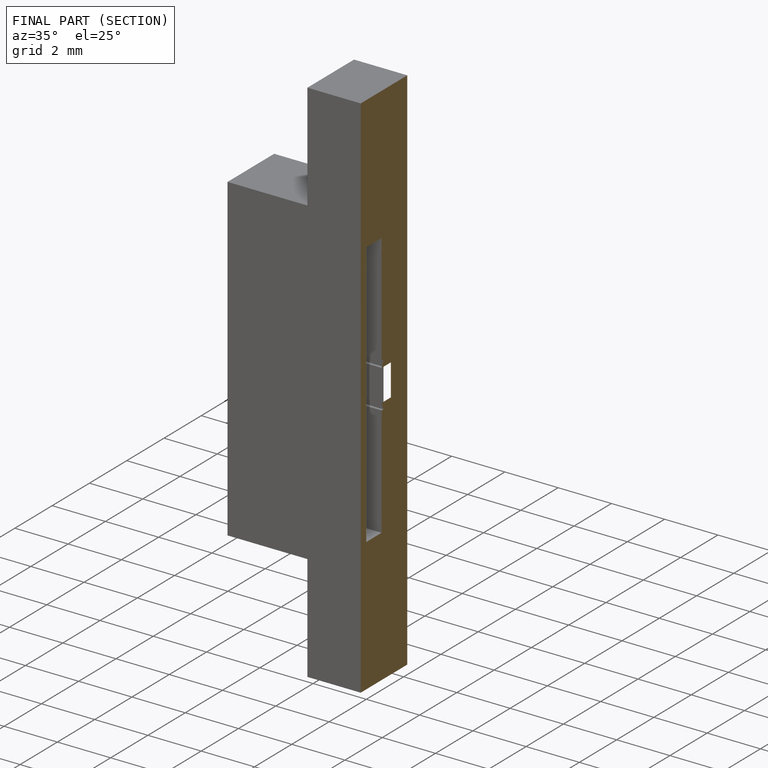
[diagram: finished part — half-section view (interior)]
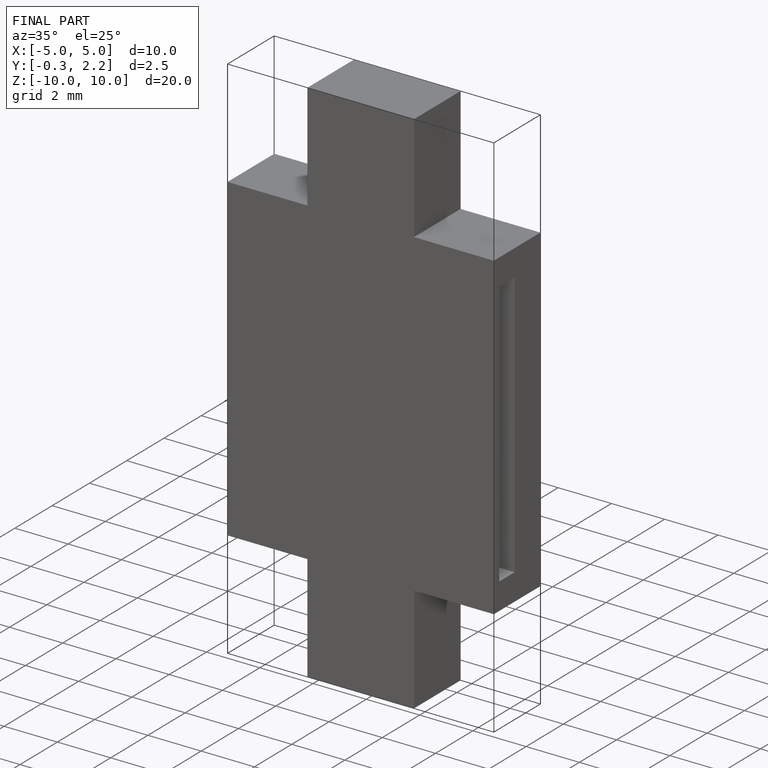
[diagram: finished part — iso view with bounding-box wireframe]
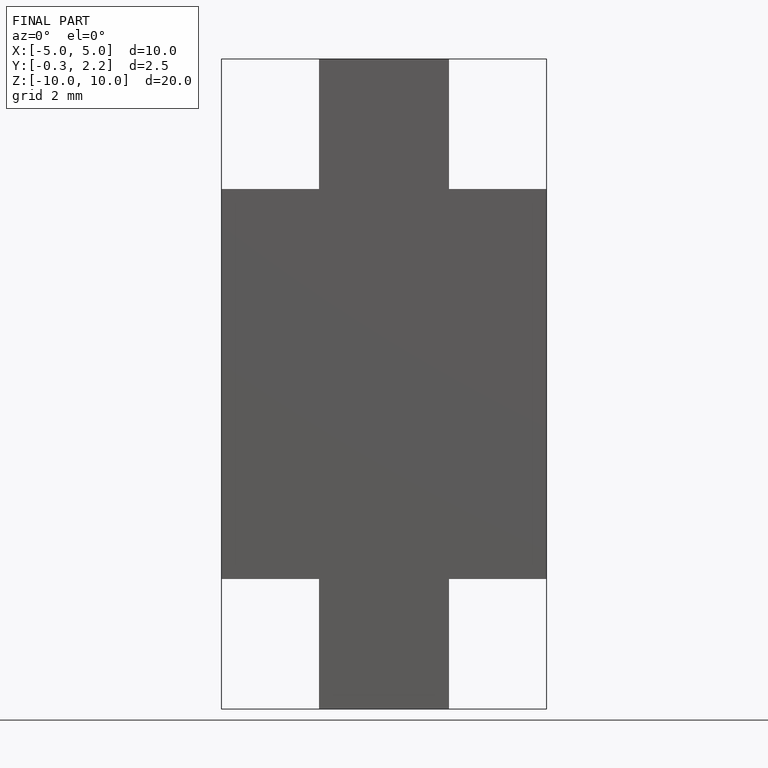
[diagram: finished part — front view with bounding-box wireframe]
